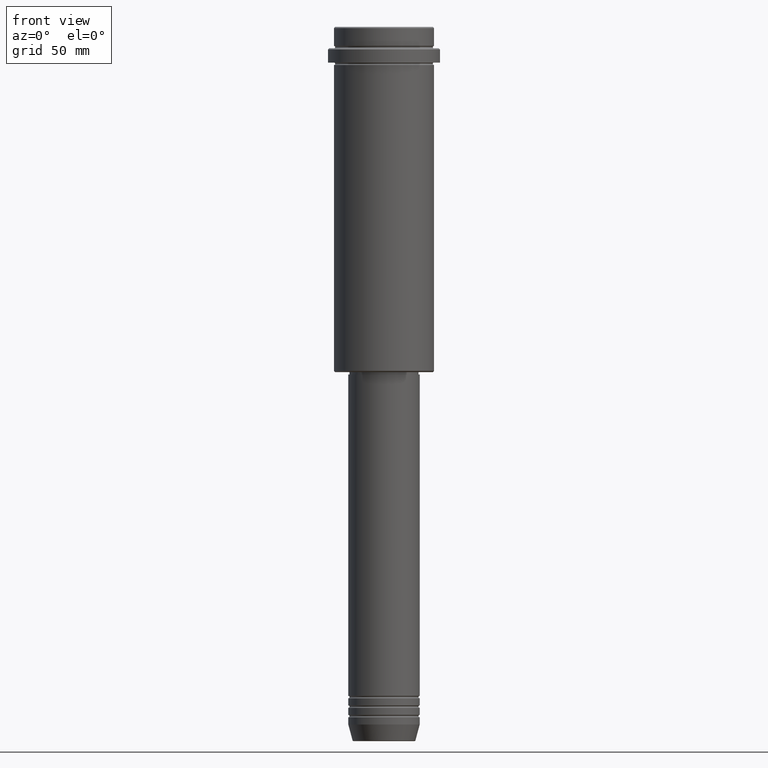
[diagram: clean part render]
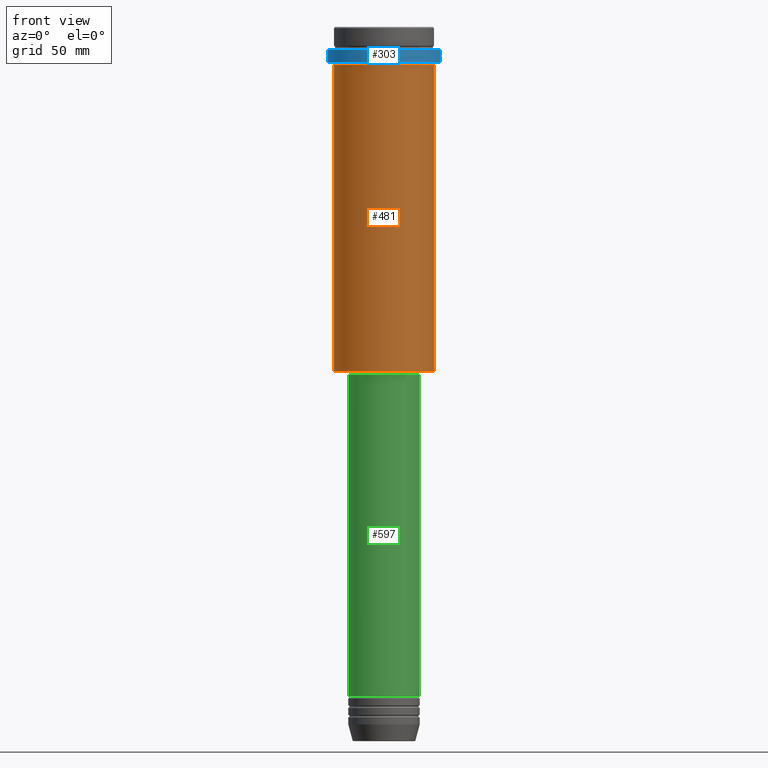
[diagram: same view with three faces highlighted in distinct colors, each labeled with its STEP entity id]
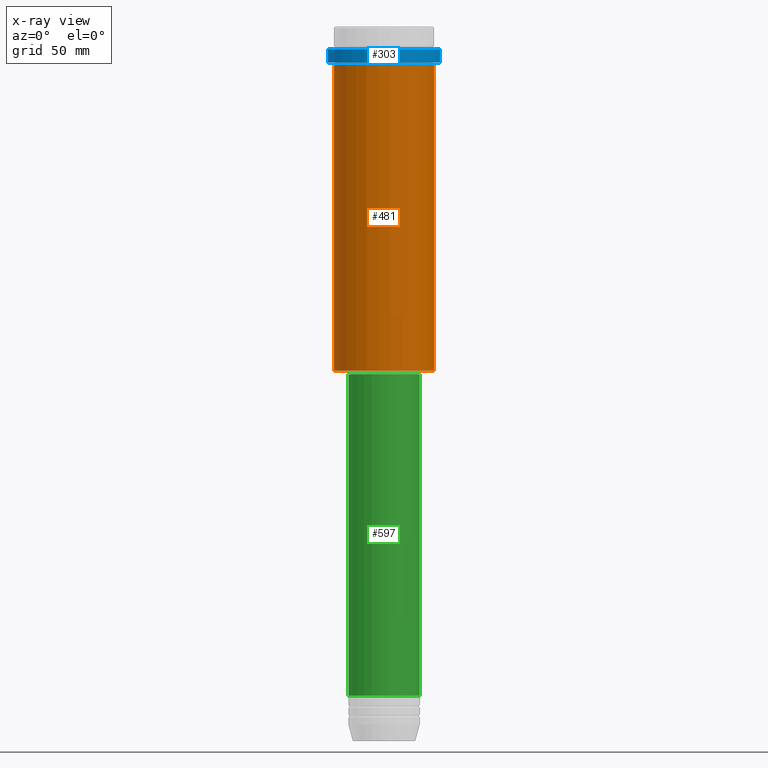
[diagram: x-ray of the same camera — body ghosted, the three highlighted faces saturated]
A machine part, front view with three faces highlighted in distinct colors.
The next image is the same camera in x-ray (body ghosted, the three faces saturated) — at least one of them is partly hidden behind the body in this view.
Their STEP definitions:

[orange] entity #481 — the highlighted cylindrical surface (partial cylindrical patch) has radius 21 mm, axis along (-0, -0, 1).
#73 = CARTESIAN_POINT ( 'NONE',  ( 21.00000000000000000, 0.000000000000000000, 0.000000000000000000 ) ) ;
#80 = LINE ( 'NONE', #637, #989 ) ;
#116 = FACE_OUTER_BOUND ( 'NONE', #124, .T. ) ;
#124 = EDGE_LOOP ( 'NONE', ( #743, #409, #460, #1327 ) ) ;
#129 = CARTESIAN_POINT ( 'NONE',  ( 0.000000000000000000, 0.000000000000000000, 0.000000000000000000 ) ) ;
#141 = AXIS2_PLACEMENT_3D ( 'NONE', #466, #1228, #260 ) ;
#201 = DIRECTION ( 'NONE',  ( -0.000000000000000000, -0.000000000000000000, 1.000000000000000000 ) ) ;
#260 = DIRECTION ( 'NONE',  ( 1.000000000000000000, 0.000000000000000000, 0.000000000000000000 ) ) ;
#274 = CIRCLE ( 'NONE', #733, 21.00000000000000000 ) ;
#335 = DIRECTION ( 'NONE',  ( -0.000000000000000000, -0.000000000000000000, 1.000000000000000000 ) ) ;
#348 = EDGE_CURVE ( 'NONE', #441, #642, #274, .T. ) ;
#409 = ORIENTED_EDGE ( 'NONE', *, *, #348, .T. ) ;
#441 = VERTEX_POINT ( 'NONE', #1091 ) ;
#460 = ORIENTED_EDGE ( 'NONE', *, *, #737, .T. ) ;
#466 = CARTESIAN_POINT ( 'NONE',  ( 0.000000000000000000, 0.000000000000000000, -16.00000000000000355 ) ) ;
#481 = ADVANCED_FACE ( 'NONE', ( #116 ), #1305, .T. ) ;
#637 = CARTESIAN_POINT ( 'NONE',  ( -21.00000000000000000, 2.571758278209441661E-15, 0.000000000000000000 ) ) ;
#640 = VERTEX_POINT ( 'NONE', #1240 ) ;
#642 = VERTEX_POINT ( 'NONE', #931 ) ;
#728 = EDGE_CURVE ( 'NONE', #441, #640, #80, .T. ) ;
#733 = AXIS2_PLACEMENT_3D ( 'NONE', #1174, #201, #1405 ) ;
#737 = EDGE_CURVE ( 'NONE', #642, #959, #1059, .T. ) ;
#743 = ORIENTED_EDGE ( 'NONE', *, *, #728, .F. ) ;
#756 = AXIS2_PLACEMENT_3D ( 'NONE', #129, #335, #1311 ) ;
#931 = CARTESIAN_POINT ( 'NONE',  ( 21.00000000000000000, 0.000000000000000000, -144.5000000000000568 ) ) ;
#959 = VERTEX_POINT ( 'NONE', #1211 ) ;
#989 = VECTOR ( 'NONE', #1052, 1000.000000000000000 ) ;
#1052 = DIRECTION ( 'NONE',  ( -0.000000000000000000, -0.000000000000000000, 1.000000000000000000 ) ) ;
#1059 = LINE ( 'NONE', #73, #1206 ) ;
#1091 = CARTESIAN_POINT ( 'NONE',  ( -21.00000000000000000, 2.571758278209441661E-15, -144.5000000000000568 ) ) ;
#1098 = EDGE_CURVE ( 'NONE', #640, #959, #1139, .T. ) ;
#1139 = CIRCLE ( 'NONE', #141, 21.00000000000000000 ) ;
#1172 = DIRECTION ( 'NONE',  ( -0.000000000000000000, -0.000000000000000000, 1.000000000000000000 ) ) ;
#1174 = CARTESIAN_POINT ( 'NONE',  ( 0.000000000000000000, 0.000000000000000000, -144.5000000000000568 ) ) ;
#1206 = VECTOR ( 'NONE', #1172, 1000.000000000000000 ) ;
#1211 = CARTESIAN_POINT ( 'NONE',  ( 21.00000000000000000, 0.000000000000000000, -16.00000000000000355 ) ) ;
#1228 = DIRECTION ( 'NONE',  ( -0.000000000000000000, -0.000000000000000000, 1.000000000000000000 ) ) ;
#1240 = CARTESIAN_POINT ( 'NONE',  ( -21.00000000000000000, 2.571758278209441661E-15, -16.00000000000000355 ) ) ;
#1305 = CYLINDRICAL_SURFACE ( 'NONE', #756, 21.00000000000000000 ) ;
#1311 = DIRECTION ( 'NONE',  ( 1.000000000000000000, 0.000000000000000000, 0.000000000000000000 ) ) ;
#1327 = ORIENTED_EDGE ( 'NONE', *, *, #1098, .F. ) ;
#1405 = DIRECTION ( 'NONE',  ( -1.000000000000000000, 0.000000000000000000, 0.000000000000000000 ) ) ;

[blue] entity #303 — the highlighted cylindrical surface (partial cylindrical patch) has radius 23.5 mm, axis along (-0, -0, 1).
#39 = DIRECTION ( 'NONE',  ( -0.000000000000000000, -0.000000000000000000, 1.000000000000000000 ) ) ;
#45 = VERTEX_POINT ( 'NONE', #586 ) ;
#61 = VERTEX_POINT ( 'NONE', #535 ) ;
#83 = DIRECTION ( 'NONE',  ( -0.000000000000000000, -0.000000000000000000, 1.000000000000000000 ) ) ;
#158 = EDGE_CURVE ( 'NONE', #958, #61, #755, .T. ) ;
#169 = DIRECTION ( 'NONE',  ( -0.000000000000000000, -0.000000000000000000, 1.000000000000000000 ) ) ;
#230 = VECTOR ( 'NONE', #39, 1000.000000000000000 ) ;
#247 = EDGE_CURVE ( 'NONE', #61, #1324, #1132, .T. ) ;
#249 = ORIENTED_EDGE ( 'NONE', *, *, #818, .F. ) ;
#303 = ADVANCED_FACE ( 'NONE', ( #982 ), #1401, .T. ) ;
#393 = LINE ( 'NONE', #962, #874 ) ;
#433 = CARTESIAN_POINT ( 'NONE',  ( -23.50000000000000711, 2.877919977996281109E-15, -15.00000000000000000 ) ) ;
#452 = DIRECTION ( 'NONE',  ( 1.000000000000000000, 0.000000000000000000, 0.000000000000000000 ) ) ;
#489 = CARTESIAN_POINT ( 'NONE',  ( 23.50000000000000000, 0.000000000000000000, 0.000000000000000000 ) ) ;
#519 = DIRECTION ( 'NONE',  ( 1.000000000000000000, 0.000000000000000000, 0.000000000000000000 ) ) ;
#535 = CARTESIAN_POINT ( 'NONE',  ( 23.50000000000000355, 0.000000000000000000, -15.00000000000000000 ) ) ;
#548 = DIRECTION ( 'NONE',  ( 0.000000000000000000, 0.000000000000000000, -1.000000000000000000 ) ) ;
#586 = CARTESIAN_POINT ( 'NONE',  ( -23.50000000000000000, 2.877919977996280320E-15, -9.499999999999944933 ) ) ;
#638 = CARTESIAN_POINT ( 'NONE',  ( 0.000000000000000000, 0.000000000000000000, 0.000000000000000000 ) ) ;
#716 = CARTESIAN_POINT ( 'NONE',  ( 0.000000000000000000, 0.000000000000000000, -15.00000000000000000 ) ) ;
#738 = AXIS2_PLACEMENT_3D ( 'NONE', #1002, #548, #452 ) ;
#755 = CIRCLE ( 'NONE', #1135, 23.50000000000000355 ) ;
#787 = ORIENTED_EDGE ( 'NONE', *, *, #247, .T. ) ;
#818 = EDGE_CURVE ( 'NONE', #958, #45, #393, .T. ) ;
#874 = VECTOR ( 'NONE', #1080, 1000.000000000000000 ) ;
#925 = DIRECTION ( 'NONE',  ( 1.000000000000000000, 0.000000000000000000, 0.000000000000000000 ) ) ;
#949 = CIRCLE ( 'NONE', #738, 23.50000000000000000 ) ;
#951 = ORIENTED_EDGE ( 'NONE', *, *, #1403, .T. ) ;
#958 = VERTEX_POINT ( 'NONE', #433 ) ;
#962 = CARTESIAN_POINT ( 'NONE',  ( -23.50000000000000000, 2.877919977996280320E-15, 0.000000000000000000 ) ) ;
#982 = FACE_OUTER_BOUND ( 'NONE', #1362, .T. ) ;
#997 = CARTESIAN_POINT ( 'NONE',  ( 23.50000000000000000, 0.000000000000000000, -9.499999999999944933 ) ) ;
#1002 = CARTESIAN_POINT ( 'NONE',  ( 0.000000000000000000, 0.000000000000000000, -9.499999999999944933 ) ) ;
#1027 = AXIS2_PLACEMENT_3D ( 'NONE', #638, #83, #519 ) ;
#1074 = ORIENTED_EDGE ( 'NONE', *, *, #158, .T. ) ;
#1080 = DIRECTION ( 'NONE',  ( -0.000000000000000000, -0.000000000000000000, 1.000000000000000000 ) ) ;
#1132 = LINE ( 'NONE', #489, #230 ) ;
#1135 = AXIS2_PLACEMENT_3D ( 'NONE', #716, #169, #925 ) ;
#1324 = VERTEX_POINT ( 'NONE', #997 ) ;
#1362 = EDGE_LOOP ( 'NONE', ( #249, #1074, #787, #951 ) ) ;
#1401 = CYLINDRICAL_SURFACE ( 'NONE', #1027, 23.50000000000000000 ) ;
#1403 = EDGE_CURVE ( 'NONE', #1324, #45, #949, .T. ) ;

[green] entity #597 — the highlighted cylindrical surface (edge-blend (fillet) strip) has radius 15 mm, axis along (-0, -0, 1).
#32 = CARTESIAN_POINT ( 'NONE',  ( 0.000000000000000000, 0.000000000000000000, -280.9999999999998863 ) ) ;
#33 = FACE_OUTER_BOUND ( 'NONE', #256, .T. ) ;
#37 = CARTESIAN_POINT ( 'NONE',  ( -15.00000000000000000, 1.836970198721029589E-15, 0.000000000000000000 ) ) ;
#41 = VERTEX_POINT ( 'NONE', #461 ) ;
#66 = ORIENTED_EDGE ( 'NONE', *, *, #633, .F. ) ;
#94 = AXIS2_PLACEMENT_3D ( 'NONE', #32, #1243, #912 ) ;
#174 = ORIENTED_EDGE ( 'NONE', *, *, #658, .F. ) ;
#232 = CIRCLE ( 'NONE', #576, 15.00000000000000000 ) ;
#237 = LINE ( 'NONE', #1087, #1295 ) ;
#256 = EDGE_LOOP ( 'NONE', ( #174, #333, #1407, #66 ) ) ;
#265 = LINE ( 'NONE', #37, #406 ) ;
#333 = ORIENTED_EDGE ( 'NONE', *, *, #984, .T. ) ;
#406 = VECTOR ( 'NONE', #1130, 1000.000000000000000 ) ;
#461 = CARTESIAN_POINT ( 'NONE',  ( -15.00000000000000000, 1.836970198721029589E-15, -145.9999999999999147 ) ) ;
#469 = CARTESIAN_POINT ( 'NONE',  ( 0.000000000000000000, 0.000000000000000000, 0.000000000000000000 ) ) ;
#537 = VERTEX_POINT ( 'NONE', #671 ) ;
#576 = AXIS2_PLACEMENT_3D ( 'NONE', #938, #1023, #945 ) ;
#585 = DIRECTION ( 'NONE',  ( -0.000000000000000000, -0.000000000000000000, 1.000000000000000000 ) ) ;
#597 = ADVANCED_FACE ( 'NONE', ( #33 ), #1045, .T. ) ;
#633 = EDGE_CURVE ( 'NONE', #41, #537, #232, .T. ) ;
#658 = EDGE_CURVE ( 'NONE', #1020, #41, #265, .T. ) ;
#671 = CARTESIAN_POINT ( 'NONE',  ( 15.00000000000000000, 0.000000000000000000, -145.9999999999999147 ) ) ;
#672 = DIRECTION ( 'NONE',  ( -0.000000000000000000, -0.000000000000000000, 1.000000000000000000 ) ) ;
#693 = CIRCLE ( 'NONE', #94, 15.00000000000000000 ) ;
#701 = DIRECTION ( 'NONE',  ( 1.000000000000000000, 0.000000000000000000, 0.000000000000000000 ) ) ;
#851 = AXIS2_PLACEMENT_3D ( 'NONE', #469, #585, #701 ) ;
#912 = DIRECTION ( 'NONE',  ( 1.000000000000000000, 0.000000000000000000, 0.000000000000000000 ) ) ;
#938 = CARTESIAN_POINT ( 'NONE',  ( 0.000000000000000000, 0.000000000000000000, -145.9999999999999147 ) ) ;
#940 = CARTESIAN_POINT ( 'NONE',  ( -15.00000000000000000, 1.836970198721029589E-15, -280.9999999999998863 ) ) ;
#945 = DIRECTION ( 'NONE',  ( 1.000000000000000000, 0.000000000000000000, 0.000000000000000000 ) ) ;
#984 = EDGE_CURVE ( 'NONE', #1020, #1346, #693, .T. ) ;
#1020 = VERTEX_POINT ( 'NONE', #940 ) ;
#1023 = DIRECTION ( 'NONE',  ( -0.000000000000000000, -0.000000000000000000, 1.000000000000000000 ) ) ;
#1045 = CYLINDRICAL_SURFACE ( 'NONE', #851, 15.00000000000000000 ) ;
#1087 = CARTESIAN_POINT ( 'NONE',  ( 15.00000000000000000, 0.000000000000000000, 0.000000000000000000 ) ) ;
#1130 = DIRECTION ( 'NONE',  ( -0.000000000000000000, -0.000000000000000000, 1.000000000000000000 ) ) ;
#1243 = DIRECTION ( 'NONE',  ( -0.000000000000000000, -0.000000000000000000, 1.000000000000000000 ) ) ;
#1295 = VECTOR ( 'NONE', #672, 1000.000000000000000 ) ;
#1303 = CARTESIAN_POINT ( 'NONE',  ( 15.00000000000000000, 0.000000000000000000, -280.9999999999998863 ) ) ;
#1346 = VERTEX_POINT ( 'NONE', #1303 ) ;
#1386 = EDGE_CURVE ( 'NONE', #1346, #537, #237, .T. ) ;
#1407 = ORIENTED_EDGE ( 'NONE', *, *, #1386, .T. ) ;